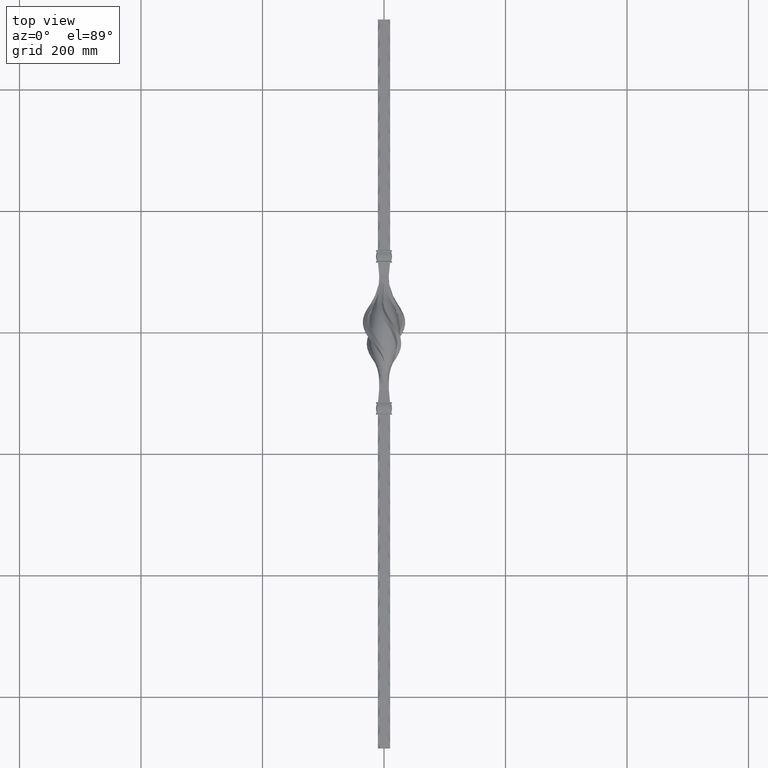
[diagram: clean part render]
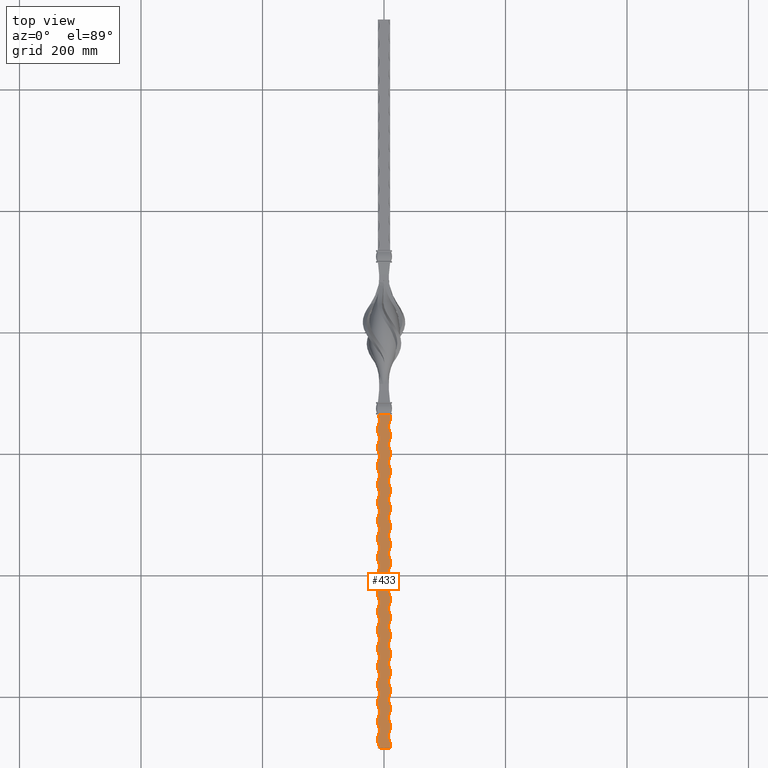
[diagram: same view with one face highlighted and labeled with its STEP entity id]
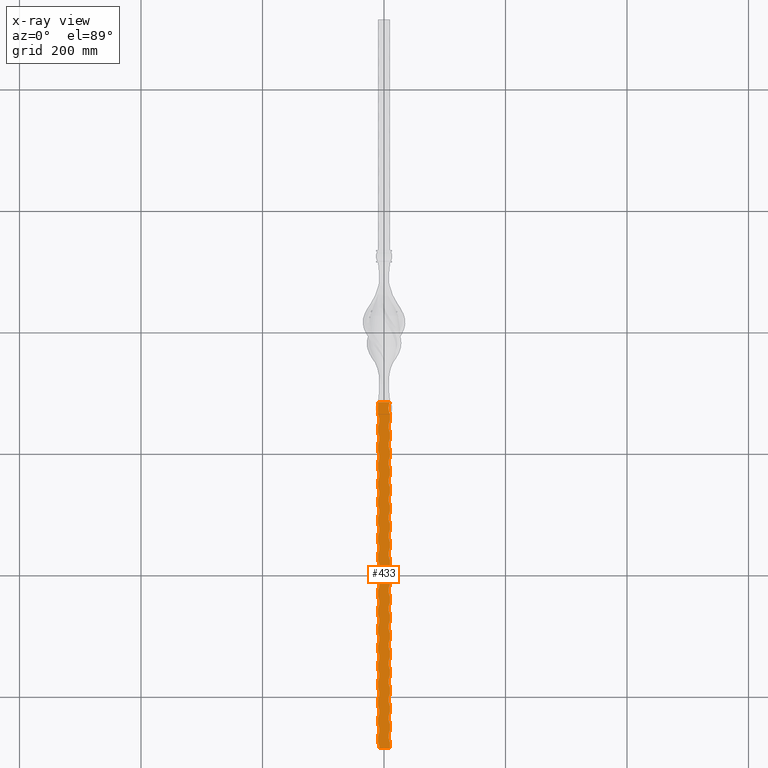
[diagram: x-ray of the same camera — body ghosted, the highlighted face saturated]
A machine part, top view. The second image highlights one B-rep face of the part: STEP entity #433.
The next image is the same camera in x-ray: the body ghosted, the highlighted face saturated — about 0% of this face is hidden behind the body in this view.
In plain terms, the highlighted planar face has unit normal (-0, 0, -1).
Its self-contained STEP definition (entity closure, byte-faithful):
#9 = AXIS2_PLACEMENT_3D ( 'NONE', #24786, #6959, #28830 ) ;
#42 = CARTESIAN_POINT ( 'NONE',  ( -10.00000000000050804, -275.0000000000000000, 10.00000000000000533 ) ) ;
#85 = VERTEX_POINT ( 'NONE', #8922 ) ;
#116 = ORIENTED_EDGE ( 'NONE', *, *, #24382, .F. ) ;
#206 = VERTEX_POINT ( 'NONE', #24810 ) ;
#233 = VECTOR ( 'NONE', #1951, 1000.000000000000000 ) ;
#242 = ORIENTED_EDGE ( 'NONE', *, *, #6514, .T. ) ;
#299 = EDGE_CURVE ( 'NONE', #24684, #20788, #23726, .T. ) ;
#333 = DIRECTION ( 'NONE',  ( -0.000000000000000000, -0.000000000000000000, -1.000000000000000000 ) ) ;
#339 = EDGE_CURVE ( 'NONE', #10174, #18144, #16110, .T. ) ;
#426 = EDGE_CURVE ( 'NONE', #19575, #14407, #10162, .T. ) ;
#433 = ADVANCED_FACE ( 'NONE', ( #20985 ), #4538, .F. ) ;
#455 = CARTESIAN_POINT ( 'NONE',  ( -10.00000000000029132, -195.0000000000000568, 10.00000000000000533 ) ) ;
#462 = VERTEX_POINT ( 'NONE', #9193 ) ;
#469 = ORIENTED_EDGE ( 'NONE', *, *, #1239, .F. ) ;
#470 = EDGE_CURVE ( 'NONE', #749, #206, #23039, .T. ) ;
#518 = LINE ( 'NONE', #10863, #27985 ) ;
#692 = DIRECTION ( 'NONE',  ( -0.000000000000000000, -0.000000000000000000, -1.000000000000000000 ) ) ;
#702 = DIRECTION ( 'NONE',  ( -0.000000000000000000, -0.000000000000000000, -1.000000000000000000 ) ) ;
#740 = VERTEX_POINT ( 'NONE', #455 ) ;
#741 = DIRECTION ( 'NONE',  ( -1.000000000000000000, 0.000000000000000000, 0.000000000000000000 ) ) ;
#749 = VERTEX_POINT ( 'NONE', #9584 ) ;
#754 = CARTESIAN_POINT ( 'NONE',  ( 10.00000000000000178, -415.0000000000036380, 10.00000000000000533 ) ) ;
#766 = DIRECTION ( 'NONE',  ( -0.000000000000000000, -0.000000000000000000, -1.000000000000000000 ) ) ;
#889 = AXIS2_PLACEMENT_3D ( 'NONE', #3494, #28159, #1166 ) ;
#943 = VERTEX_POINT ( 'NONE', #13374 ) ;
#965 = CARTESIAN_POINT ( 'NONE',  ( -10.00000000000127365, -465.0000000000000000, 10.00000000000000533 ) ) ;
#988 = CARTESIAN_POINT ( 'NONE',  ( -10.00000000000000000, -130.0000000000000000, 10.00000000000000533 ) ) ;
#1010 = DIRECTION ( 'NONE',  ( -0.000000000000000000, 1.000000000000000000, -0.000000000000000000 ) ) ;
#1050 = VERTEX_POINT ( 'NONE', #2952 ) ;
#1113 = EDGE_CURVE ( 'NONE', #24017, #12822, #3173, .T. ) ;
#1129 = DIRECTION ( 'NONE',  ( -0.000000000000000000, -0.000000000000000000, -1.000000000000000000 ) ) ;
#1141 = ORIENTED_EDGE ( 'NONE', *, *, #13402, .T. ) ;
#1155 = VECTOR ( 'NONE', #18752, 1000.000000000000000 ) ;
#1166 = DIRECTION ( 'NONE',  ( -1.000000000000000000, 0.000000000000000000, 0.000000000000000000 ) ) ;
#1191 = EDGE_CURVE ( 'NONE', #23761, #22421, #25432, .T. ) ;
#1200 = EDGE_CURVE ( 'NONE', #462, #5820, #7705, .T. ) ;
#1201 = CIRCLE ( 'NONE', #15718, 21.25000000000003197 ) ;
#1239 = EDGE_CURVE ( 'NONE', #10174, #20815, #13629, .T. ) ;
#1328 = CARTESIAN_POINT ( 'NONE',  ( 28.74999999999810996, -425.0000000000000568, 10.00000000000000533 ) ) ;
#1379 = CIRCLE ( 'NONE', #4790, 21.25000000000003197 ) ;
#1523 = ORIENTED_EDGE ( 'NONE', *, *, #20984, .T. ) ;
#1524 = EDGE_CURVE ( 'NONE', #26336, #2981, #4931, .T. ) ;
#1595 = DIRECTION ( 'NONE',  ( -0.000000000000000000, 1.000000000000000000, -0.000000000000000000 ) ) ;
#1696 = CARTESIAN_POINT ( 'NONE',  ( -28.75000000000020961, -175.0000000000000568, 10.00000000000000533 ) ) ;
#1711 = CARTESIAN_POINT ( 'NONE',  ( -10.00000000000094502, -395.0000000000000000, 10.00000000000000533 ) ) ;
#1943 = CIRCLE ( 'NONE', #27223, 21.25000000000003197 ) ;
#1951 = DIRECTION ( 'NONE',  ( -0.000000000000000000, 1.000000000000000000, -0.000000000000000000 ) ) ;
#2099 = CARTESIAN_POINT ( 'NONE',  ( 10.00000000000000000, -175.0000000000036664, 10.00000000000000533 ) ) ;
#2113 = ORIENTED_EDGE ( 'NONE', *, *, #4495, .T. ) ;
#2120 = EDGE_CURVE ( 'NONE', #206, #9529, #9411, .T. ) ;
#2123 = AXIS2_PLACEMENT_3D ( 'NONE', #13201, #6252, #28704 ) ;
#2145 = ORIENTED_EDGE ( 'NONE', *, *, #1113, .F. ) ;
#2298 = CARTESIAN_POINT ( 'NONE',  ( 9.999999999998074429, -315.0000000000000568, 10.00000000000000533 ) ) ;
#2328 = EDGE_CURVE ( 'NONE', #19916, #6972, #9059, .T. ) ;
#2397 = VECTOR ( 'NONE', #1595, 1000.000000000000000 ) ;
#2427 = DIRECTION ( 'NONE',  ( -0.000000000000000000, 1.000000000000000000, -0.000000000000000000 ) ) ;
#2472 = CARTESIAN_POINT ( 'NONE',  ( 10.00000000000000178, -625.0000000000036380, 10.00000000000000533 ) ) ;
#2482 = AXIS2_PLACEMENT_3D ( 'NONE', #7305, #702, #16108 ) ;
#2536 = CARTESIAN_POINT ( 'NONE',  ( -10.00000000000000000, -114.9999999999999858, 10.00000000000000533 ) ) ;
#2557 = EDGE_CURVE ( 'NONE', #23431, #27333, #13601, .T. ) ;
#2561 = ORIENTED_EDGE ( 'NONE', *, *, #27881, .T. ) ;
#2566 = CIRCLE ( 'NONE', #2482, 21.25000000000003197 ) ;
#2568 = DIRECTION ( 'NONE',  ( -1.000000000000000000, 0.000000000000000000, 0.000000000000000000 ) ) ;
#2609 = CARTESIAN_POINT ( 'NONE',  ( 9.999999999998074429, -255.0000000000000568, 10.00000000000000533 ) ) ;
#2691 = LINE ( 'NONE', #10883, #17315 ) ;
#2763 = DIRECTION ( 'NONE',  ( -0.000000000000000000, -0.000000000000000000, -1.000000000000000000 ) ) ;
#2777 = CIRCLE ( 'NONE', #6236, 21.25000000000002487 ) ;
#2816 = AXIS2_PLACEMENT_3D ( 'NONE', #7662, #766, #16547 ) ;
#2822 = ORIENTED_EDGE ( 'NONE', *, *, #15702, .T. ) ;
#2837 = LINE ( 'NONE', #16025, #27169 ) ;
#2847 = CARTESIAN_POINT ( 'NONE',  ( -10.00000000000018296, -165.0000000000000284, 10.00000000000000533 ) ) ;
#2931 = LINE ( 'NONE', #11628, #5359 ) ;
#2933 = AXIS2_PLACEMENT_3D ( 'NONE', #24370, #11377, #11271 ) ;
#2952 = CARTESIAN_POINT ( 'NONE',  ( 9.999999999998076206, -555.0000000000000000, 10.00000000000000533 ) ) ;
#2954 = CIRCLE ( 'NONE', #24654, 21.25000000000003197 ) ;
#2981 = VERTEX_POINT ( 'NONE', #3190 ) ;
#3070 = CARTESIAN_POINT ( 'NONE',  ( 28.74999999999810996, -275.0000000000000000, 10.00000000000000533 ) ) ;
#3082 = ORIENTED_EDGE ( 'NONE', *, *, #15968, .T. ) ;
#3084 = CARTESIAN_POINT ( 'NONE',  ( -10.00000000000007283, -155.0000000000000284, 10.00000000000000533 ) ) ;
#3086 = CIRCLE ( 'NONE', #26036, 21.25000000000002842 ) ;
#3088 = ORIENTED_EDGE ( 'NONE', *, *, #9757, .T. ) ;
#3106 = CARTESIAN_POINT ( 'NONE',  ( -10.00000000000040146, -225.0000000000000284, 10.00000000000000533 ) ) ;
#3109 = AXIS2_PLACEMENT_3D ( 'NONE', #3070, #22975, #27447 ) ;
#3115 = VECTOR ( 'NONE', #8339, 1000.000000000000000 ) ;
#3121 = ORIENTED_EDGE ( 'NONE', *, *, #17822, .T. ) ;
#3159 = CARTESIAN_POINT ( 'NONE',  ( -10.00000000000000000, -130.0000000000000000, 10.00000000000000533 ) ) ;
#3173 = LINE ( 'NONE', #12499, #9085 ) ;
#3190 = CARTESIAN_POINT ( 'NONE',  ( -10.00000000000160050, -575.0000000000001137, 10.00000000000000533 ) ) ;
#3301 = DIRECTION ( 'NONE',  ( -0.000000000000000000, 1.000000000000000000, -0.000000000000000000 ) ) ;
#3331 = DIRECTION ( 'NONE',  ( -0.000000000000000000, -0.000000000000000000, -1.000000000000000000 ) ) ;
#3464 = VECTOR ( 'NONE', #10393, 1000.000000000000000 ) ;
#3494 = CARTESIAN_POINT ( 'NONE',  ( -28.75000000000064304, -295.0000000000000568, 10.00000000000000533 ) ) ;
#3499 = CIRCLE ( 'NONE', #8837, 21.25000000000003197 ) ;
#3524 = DIRECTION ( 'NONE',  ( -1.000000000000000000, 0.000000000000000000, 0.000000000000000000 ) ) ;
#3572 = ORIENTED_EDGE ( 'NONE', *, *, #11438, .T. ) ;
#3596 = CARTESIAN_POINT ( 'NONE',  ( -10.00000000000192735, -645.0000000000000000, 10.00000000000000533 ) ) ;
#3653 = DIRECTION ( 'NONE',  ( -0.000000000000000000, -0.000000000000000000, -1.000000000000000000 ) ) ;
#3831 = VERTEX_POINT ( 'NONE', #2298 ) ;
#3898 = VERTEX_POINT ( 'NONE', #7063 ) ;
#3928 = ORIENTED_EDGE ( 'NONE', *, *, #2328, .F. ) ;
#3992 = CARTESIAN_POINT ( 'NONE',  ( -10.00000000000029132, -215.0000000000000853, 10.00000000000000533 ) ) ;
#4022 = EDGE_CURVE ( 'NONE', #6005, #14407, #9333, .T. ) ;
#4044 = CIRCLE ( 'NONE', #10217, 21.25000000000002842 ) ;
#4067 = ORIENTED_EDGE ( 'NONE', *, *, #8910, .T. ) ;
#4184 = ORIENTED_EDGE ( 'NONE', *, *, #20201, .T. ) ;
#4411 = EDGE_CURVE ( 'NONE', #17824, #12504, #12126, .T. ) ;
#4495 = EDGE_CURVE ( 'NONE', #17465, #23522, #2691, .T. ) ;
#4507 = CARTESIAN_POINT ( 'NONE',  ( -28.75000000000075318, -325.0000000000000568, 10.00000000000000533 ) ) ;
#4538 = PLANE ( 'NONE',  #2933 ) ;
#4611 = CIRCLE ( 'NONE', #17837, 21.25000000000002487 ) ;
#4642 = CARTESIAN_POINT ( 'NONE',  ( 10.00000000000000000, -130.0000000000000000, 10.00000000000000533 ) ) ;
#4697 = VECTOR ( 'NONE', #8727, 1000.000000000000000 ) ;
#4727 = CIRCLE ( 'NONE', #8376, 21.25000000000003197 ) ;
#4761 = CARTESIAN_POINT ( 'NONE',  ( 10.00000000000000000, -130.0000000000000000, 10.00000000000000533 ) ) ;
#4780 = DIRECTION ( 'NONE',  ( 1.000000000000000000, 0.000000000000000000, 0.000000000000000000 ) ) ;
#4790 = AXIS2_PLACEMENT_3D ( 'NONE', #12907, #3653, #25910 ) ;
#4797 = VERTEX_POINT ( 'NONE', #17363 ) ;
#4798 = CIRCLE ( 'NONE', #3109, 21.25000000000003197 ) ;
#4909 = CARTESIAN_POINT ( 'NONE',  ( -28.75000000000119016, -445.0000000000000568, 10.00000000000000533 ) ) ;
#4931 = LINE ( 'NONE', #13061, #20591 ) ;
#4949 = EDGE_CURVE ( 'NONE', #9399, #11756, #26638, .T. ) ;
#5006 = LINE ( 'NONE', #14058, #9165 ) ;
#5052 = CARTESIAN_POINT ( 'NONE',  ( 28.74999999999810996, -155.0000000000000284, 10.00000000000000533 ) ) ;
#5066 = DIRECTION ( 'NONE',  ( -0.000000000000000000, -0.000000000000000000, -1.000000000000000000 ) ) ;
#5133 = EDGE_CURVE ( 'NONE', #10404, #20815, #10343, .T. ) ;
#5148 = DIRECTION ( 'NONE',  ( -0.000000000000000000, 1.000000000000000000, -0.000000000000000000 ) ) ;
#5155 = VERTEX_POINT ( 'NONE', #13783 ) ;
#5217 = CARTESIAN_POINT ( 'NONE',  ( -10.00000000000000000, -130.0000000000000000, 10.00000000000000533 ) ) ;
#5359 = VECTOR ( 'NONE', #27134, 1000.000000000000000 ) ;
#5412 = DIRECTION ( 'NONE',  ( -1.000000000000000000, 0.000000000000000000, 0.000000000000000000 ) ) ;
#5419 = EDGE_CURVE ( 'NONE', #23965, #21728, #26282, .T. ) ;
#5482 = CARTESIAN_POINT ( 'NONE',  ( -10.00000000000000000, -130.0000000000000000, 10.00000000000000533 ) ) ;
#5498 = VERTEX_POINT ( 'NONE', #24476 ) ;
#5508 = DIRECTION ( 'NONE',  ( -0.000000000000000000, -0.000000000000000000, -1.000000000000000000 ) ) ;
#5557 = ORIENTED_EDGE ( 'NONE', *, *, #16183, .T. ) ;
#5646 = CARTESIAN_POINT ( 'NONE',  ( -28.75000000000130385, -475.0000000000000568, 10.00000000000000533 ) ) ;
#5668 = EDGE_CURVE ( 'NONE', #11194, #9046, #21786, .T. ) ;
#5785 = CARTESIAN_POINT ( 'NONE',  ( 10.00000000000000178, -445.0000000000036948, 10.00000000000000533 ) ) ;
#5820 = VERTEX_POINT ( 'NONE', #1711 ) ;
#5821 = LINE ( 'NONE', #15300, #233 ) ;
#5985 = EDGE_CURVE ( 'NONE', #19575, #19475, #12157, .T. ) ;
#6005 = VERTEX_POINT ( 'NONE', #7867 ) ;
#6033 = EDGE_CURVE ( 'NONE', #18595, #19475, #14591, .T. ) ;
#6093 = VECTOR ( 'NONE', #4780, 1000.000000000000000 ) ;
#6139 = EDGE_CURVE ( 'NONE', #20870, #28663, #12496, .T. ) ;
#6181 = DIRECTION ( 'NONE',  ( -1.000000000000000000, 0.000000000000000000, 0.000000000000000000 ) ) ;
#6208 = ORIENTED_EDGE ( 'NONE', *, *, #13048, .T. ) ;
#6236 = AXIS2_PLACEMENT_3D ( 'NONE', #4507, #333, #13591 ) ;
#6239 = ORIENTED_EDGE ( 'NONE', *, *, #11076, .T. ) ;
#6252 = DIRECTION ( 'NONE',  ( -0.000000000000000000, -0.000000000000000000, -1.000000000000000000 ) ) ;
#6288 = DIRECTION ( 'NONE',  ( -1.000000000000000000, 0.000000000000000000, 0.000000000000000000 ) ) ;
#6368 = ORIENTED_EDGE ( 'NONE', *, *, #23374, .T. ) ;
#6374 = VERTEX_POINT ( 'NONE', #2472 ) ;
#6450 = ORIENTED_EDGE ( 'NONE', *, *, #299, .T. ) ;
#6514 = EDGE_CURVE ( 'NONE', #4797, #17820, #4798, .T. ) ;
#6591 = AXIS2_PLACEMENT_3D ( 'NONE', #22039, #26388, #28729 ) ;
#6615 = CARTESIAN_POINT ( 'NONE',  ( -28.75000000000053646, -265.0000000000000000, 10.00000000000000533 ) ) ;
#6674 = AXIS2_PLACEMENT_3D ( 'NONE', #4909, #16112, #25025 ) ;
#6707 = CARTESIAN_POINT ( 'NONE',  ( -10.00000000000116351, -455.0000000000000568, 10.00000000000000533 ) ) ;
#6729 = EDGE_CURVE ( 'NONE', #22047, #18749, #14886, .T. ) ;
#6791 = ORIENTED_EDGE ( 'NONE', *, *, #8567, .F. ) ;
#6830 = EDGE_CURVE ( 'NONE', #24684, #24541, #23187, .T. ) ;
#6946 = DIRECTION ( 'NONE',  ( -0.000000000000000000, 1.000000000000000000, -0.000000000000000000 ) ) ;
#6959 = DIRECTION ( 'NONE',  ( -0.000000000000000000, -0.000000000000000000, -1.000000000000000000 ) ) ;
#6972 = VERTEX_POINT ( 'NONE', #3992 ) ;
#6991 = AXIS2_PLACEMENT_3D ( 'NONE', #7896, #12399, #23722 ) ;
#7013 = DIRECTION ( 'NONE',  ( -0.000000000000000000, 1.000000000000000000, -0.000000000000000000 ) ) ;
#7063 = CARTESIAN_POINT ( 'NONE',  ( -10.00000000000072653, -315.0000000000000568, 10.00000000000000533 ) ) ;
#7118 = DIRECTION ( 'NONE',  ( -0.000000000000000000, 1.000000000000000000, -0.000000000000000000 ) ) ;
#7124 = EDGE_CURVE ( 'NONE', #3898, #20788, #5821, .T. ) ;
#7198 = ORIENTED_EDGE ( 'NONE', *, *, #25597, .T. ) ;
#7206 = CARTESIAN_POINT ( 'NONE',  ( 28.74999999999810996, -185.0000000000000568, 10.00000000000000533 ) ) ;
#7211 = DIRECTION ( 'NONE',  ( -1.000000000000000000, 0.000000000000000000, 0.000000000000000000 ) ) ;
#7292 = DIRECTION ( 'NONE',  ( -0.000000000000000000, -0.000000000000000000, -1.000000000000000000 ) ) ;
#7305 = CARTESIAN_POINT ( 'NONE',  ( 28.74999999999810996, -485.0000000000000568, 10.00000000000000533 ) ) ;
#7306 = CARTESIAN_POINT ( 'NONE',  ( -10.00000000000072653, -335.0000000000000568, 10.00000000000000533 ) ) ;
#7332 = CARTESIAN_POINT ( 'NONE',  ( -10.00000000000000000, -130.0000000000000000, 10.00000000000000533 ) ) ;
#7402 = EDGE_CURVE ( 'NONE', #26336, #11307, #4044, .T. ) ;
#7414 = ORIENTED_EDGE ( 'NONE', *, *, #5133, .T. ) ;
#7487 = CARTESIAN_POINT ( 'NONE',  ( -10.00000000000105516, -425.0000000000000568, 10.00000000000000533 ) ) ;
#7526 = ORIENTED_EDGE ( 'NONE', *, *, #6729, .T. ) ;
#7642 = DIRECTION ( 'NONE',  ( -1.000000000000000000, 0.000000000000000000, 0.000000000000000000 ) ) ;
#7662 = CARTESIAN_POINT ( 'NONE',  ( -28.75000000000162714, -565.0000000000001137, 10.00000000000000533 ) ) ;
#7674 = VECTOR ( 'NONE', #23816, 1000.000000000000000 ) ;
#7705 = LINE ( 'NONE', #7891, #12944 ) ;
#7741 = AXIS2_PLACEMENT_3D ( 'NONE', #1696, #28047, #10481 ) ;
#7867 = CARTESIAN_POINT ( 'NONE',  ( -10.00000000000181899, -615.0000000000000000, 10.00000000000000533 ) ) ;
#7879 = EDGE_CURVE ( 'NONE', #17820, #25334, #518, .T. ) ;
#7891 = CARTESIAN_POINT ( 'NONE',  ( -10.00000000000000000, -130.0000000000000000, 10.00000000000000533 ) ) ;
#7892 = VERTEX_POINT ( 'NONE', #12136 ) ;
#7896 = CARTESIAN_POINT ( 'NONE',  ( -28.75000000000151701, -535.0000000000000000, 10.00000000000000533 ) ) ;
#7974 = EDGE_CURVE ( 'NONE', #25334, #15670, #2954, .T. ) ;
#7999 = ORIENTED_EDGE ( 'NONE', *, *, #17687, .T. ) ;
#8055 = EDGE_CURVE ( 'NONE', #23717, #21728, #26899, .T. ) ;
#8118 = AXIS2_PLACEMENT_3D ( 'NONE', #20650, #7292, #14042 ) ;
#8220 = LINE ( 'NONE', #26732, #13100 ) ;
#8250 = CARTESIAN_POINT ( 'NONE',  ( 10.00000000000000000, -130.0000000000000000, 10.00000000000000533 ) ) ;
#8339 = DIRECTION ( 'NONE',  ( -0.000000000000000000, 1.000000000000000000, -0.000000000000000000 ) ) ;
#8376 = AXIS2_PLACEMENT_3D ( 'NONE', #17177, #28216, #25901 ) ;
#8409 = DIRECTION ( 'NONE',  ( -0.000000000000000000, -0.000000000000000000, -1.000000000000000000 ) ) ;
#8430 = CARTESIAN_POINT ( 'NONE',  ( -10.00000000000000000, -130.0000000000000000, 10.00000000000000533 ) ) ;
#8476 = VECTOR ( 'NONE', #2427, 1000.000000000000000 ) ;
#8567 = EDGE_CURVE ( 'NONE', #11806, #20458, #12347, .T. ) ;
#8661 = DIRECTION ( 'NONE',  ( -0.000000000000000000, -0.000000000000000000, -1.000000000000000000 ) ) ;
#8712 = CARTESIAN_POINT ( 'NONE',  ( -28.75000000000196110, -685.0000000000000000, 10.00000000000000533 ) ) ;
#8714 = ORIENTED_EDGE ( 'NONE', *, *, #18791, .F. ) ;
#8725 = VECTOR ( 'NONE', #16578, 1000.000000000000000 ) ;
#8727 = DIRECTION ( 'NONE',  ( -0.000000000000000000, 1.000000000000000000, -0.000000000000000000 ) ) ;
#8825 = EDGE_CURVE ( 'NONE', #13616, #12975, #24844, .T. ) ;
#8837 = AXIS2_PLACEMENT_3D ( 'NONE', #13842, #5066, #22830 ) ;
#8848 = CARTESIAN_POINT ( 'NONE',  ( -10.00000000000061817, -305.0000000000000568, 10.00000000000000533 ) ) ;
#8910 = EDGE_CURVE ( 'NONE', #13616, #26632, #17181, .T. ) ;
#8922 = CARTESIAN_POINT ( 'NONE',  ( 10.00000000000000178, -655.0000000000036380, 10.00000000000000533 ) ) ;
#9046 = VERTEX_POINT ( 'NONE', #13199 ) ;
#9059 = LINE ( 'NONE', #13060, #24739 ) ;
#9085 = VECTOR ( 'NONE', #16588, 1000.000000000000000 ) ;
#9165 = VECTOR ( 'NONE', #7013, 1000.000000000000000 ) ;
#9174 = VECTOR ( 'NONE', #22167, 1000.000000000000000 ) ;
#9193 = CARTESIAN_POINT ( 'NONE',  ( -10.00000000000105516, -405.0000000000000000, 10.00000000000000533 ) ) ;
#9209 = DIRECTION ( 'NONE',  ( -1.000000000000000000, 2.775557561562891351E-15, 0.000000000000000000 ) ) ;
#9232 = EDGE_CURVE ( 'NONE', #23496, #28663, #10895, .T. ) ;
#9272 = DIRECTION ( 'NONE',  ( -0.000000000000000000, -0.000000000000000000, -1.000000000000000000 ) ) ;
#9333 = CIRCLE ( 'NONE', #12865, 21.25000000000003197 ) ;
#9389 = AXIS2_PLACEMENT_3D ( 'NONE', #13899, #18072, #20404 ) ;
#9398 = CARTESIAN_POINT ( 'NONE',  ( 9.999999999998076206, -525.0000000000000000, 10.00000000000000533 ) ) ;
#9399 = VERTEX_POINT ( 'NONE', #12601 ) ;
#9411 = CIRCLE ( 'NONE', #22678, 21.25000000000003197 ) ;
#9441 = VECTOR ( 'NONE', #22090, 1000.000000000000000 ) ;
#9529 = VERTEX_POINT ( 'NONE', #22268 ) ;
#9551 = CARTESIAN_POINT ( 'NONE',  ( 10.00000000000000000, -130.0000000000000000, 10.00000000000000533 ) ) ;
#9584 = CARTESIAN_POINT ( 'NONE',  ( 10.00000000000000178, -385.0000000000036380, 10.00000000000000533 ) ) ;
#9674 = CARTESIAN_POINT ( 'NONE',  ( 9.999999999998076206, -465.0000000000000568, 10.00000000000000533 ) ) ;
#9743 = CIRCLE ( 'NONE', #9389, 21.25000000000003197 ) ;
#9757 = EDGE_CURVE ( 'NONE', #16435, #12975, #4611, .T. ) ;
#9868 = VERTEX_POINT ( 'NONE', #7487 ) ;
#9914 = ORIENTED_EDGE ( 'NONE', *, *, #2557, .T. ) ;
#9948 = ORIENTED_EDGE ( 'NONE', *, *, #6139, .T. ) ;
#10065 = DIRECTION ( 'NONE',  ( -1.000000000000000000, 0.000000000000000000, 0.000000000000000000 ) ) ;
#10162 = LINE ( 'NONE', #26291, #27892 ) ;
#10174 = VERTEX_POINT ( 'NONE', #965 ) ;
#10217 = AXIS2_PLACEMENT_3D ( 'NONE', #15329, #15054, #22008 ) ;
#10343 = CIRCLE ( 'NONE', #6674, 21.25000000000003197 ) ;
#10393 = DIRECTION ( 'NONE',  ( -0.000000000000000000, 1.000000000000000000, -0.000000000000000000 ) ) ;
#10404 = VERTEX_POINT ( 'NONE', #11256 ) ;
#10481 = DIRECTION ( 'NONE',  ( -1.000000000000000000, 0.000000000000000000, 0.000000000000000000 ) ) ;
#10482 = DIRECTION ( 'NONE',  ( -1.000000000000000000, 0.000000000000000000, 0.000000000000000000 ) ) ;
#10681 = EDGE_CURVE ( 'NONE', #19154, #24541, #18872, .T. ) ;
#10736 = EDGE_CURVE ( 'NONE', #6005, #11307, #14693, .T. ) ;
#10743 = CARTESIAN_POINT ( 'NONE',  ( 10.00000000000000000, -295.0000000000036380, 10.00000000000000533 ) ) ;
#10764 = DIRECTION ( 'NONE',  ( -0.000000000000000000, -0.000000000000000000, -1.000000000000000000 ) ) ;
#10779 = EDGE_CURVE ( 'NONE', #15670, #19713, #2837, .T. ) ;
#10814 = ORIENTED_EDGE ( 'NONE', *, *, #19436, .T. ) ;
#10863 = CARTESIAN_POINT ( 'NONE',  ( 10.00000000000000000, -130.0000000000000000, 10.00000000000000533 ) ) ;
#10883 = CARTESIAN_POINT ( 'NONE',  ( 10.00000000000000000, -130.0000000000000000, 10.00000000000000533 ) ) ;
#10895 = LINE ( 'NONE', #7332, #1155 ) ;
#10899 = EDGE_CURVE ( 'NONE', #19154, #943, #13271, .T. ) ;
#10936 = DIRECTION ( 'NONE',  ( -0.000000000000000000, 1.000000000000000000, -0.000000000000000000 ) ) ;
#10942 = ORIENTED_EDGE ( 'NONE', *, *, #14298, .T. ) ;
#11076 = EDGE_CURVE ( 'NONE', #23496, #12822, #26100, .T. ) ;
#11194 = VERTEX_POINT ( 'NONE', #13059 ) ;
#11255 = CARTESIAN_POINT ( 'NONE',  ( -10.00000000000149036, -525.0000000000000000, 10.00000000000000533 ) ) ;
#11256 = CARTESIAN_POINT ( 'NONE',  ( -10.00000000000116351, -435.0000000000000568, 10.00000000000000533 ) ) ;
#11271 = DIRECTION ( 'NONE',  ( -1.000000000000000000, 0.000000000000000000, 0.000000000000000000 ) ) ;
#11307 = VERTEX_POINT ( 'NONE', #20048 ) ;
#11326 = LINE ( 'NONE', #28754, #4697 ) ;
#11377 = DIRECTION ( 'NONE',  ( -0.000000000000000000, 0.000000000000000000, -1.000000000000000000 ) ) ;
#11411 = CARTESIAN_POINT ( 'NONE',  ( 9.999999999998076206, -495.0000000000000568, 10.00000000000000533 ) ) ;
#11414 = CARTESIAN_POINT ( 'NONE',  ( 10.00000000000000000, -235.0000000000036380, 10.00000000000000533 ) ) ;
#11438 = EDGE_CURVE ( 'NONE', #17917, #7892, #3499, .T. ) ;
#11491 = CARTESIAN_POINT ( 'NONE',  ( 9.999999999998074429, -685.0000000000000000, 10.00000000000000533 ) ) ;
#11584 = CARTESIAN_POINT ( 'NONE',  ( 9.999999999998074429, -685.0000000000000000, 10.00000000000000533 ) ) ;
#11617 = CARTESIAN_POINT ( 'NONE',  ( -10.00000000000138201, -515.0000000000000000, 10.00000000000000533 ) ) ;
#11628 = CARTESIAN_POINT ( 'NONE',  ( 10.00000000000000000, -130.0000000000000000, 10.00000000000000533 ) ) ;
#11686 = AXIS2_PLACEMENT_3D ( 'NONE', #6615, #8661, #24243 ) ;
#11756 = VERTEX_POINT ( 'NONE', #754 ) ;
#11806 = VERTEX_POINT ( 'NONE', #11584 ) ;
#11946 = DIRECTION ( 'NONE',  ( -0.000000000000000000, -0.000000000000000000, -1.000000000000000000 ) ) ;
#11982 = CARTESIAN_POINT ( 'NONE',  ( 10.00000000000000000, -130.0000000000000000, 10.00000000000000533 ) ) ;
#11998 = EDGE_CURVE ( 'NONE', #5155, #749, #1379, .T. ) ;
#12031 = DIRECTION ( 'NONE',  ( -0.000000000000000000, 1.000000000000000000, -0.000000000000000000 ) ) ;
#12078 = EDGE_CURVE ( 'NONE', #10404, #9868, #19467, .T. ) ;
#12126 = LINE ( 'NONE', #26212, #20112 ) ;
#12136 = CARTESIAN_POINT ( 'NONE',  ( 10.00000000000000000, -325.0000000000036948, 10.00000000000000533 ) ) ;
#12141 = DIRECTION ( 'NONE',  ( -0.000000000000000000, -0.000000000000000000, -1.000000000000000000 ) ) ;
#12157 = CIRCLE ( 'NONE', #8118, 21.25000000000003197 ) ;
#12247 = EDGE_CURVE ( 'NONE', #3898, #13675, #2777, .T. ) ;
#12249 = DIRECTION ( 'NONE',  ( -0.000000000000000000, -0.000000000000000000, -1.000000000000000000 ) ) ;
#12298 = ORIENTED_EDGE ( 'NONE', *, *, #339, .T. ) ;
#12340 = DIRECTION ( 'NONE',  ( -1.000000000000000000, 0.000000000000000000, 0.000000000000000000 ) ) ;
#12347 = LINE ( 'NONE', #11491, #13358 ) ;
#12399 = DIRECTION ( 'NONE',  ( -0.000000000000000000, -0.000000000000000000, -1.000000000000000000 ) ) ;
#12441 = DIRECTION ( 'NONE',  ( -0.000000000000000000, -0.000000000000000000, -1.000000000000000000 ) ) ;
#12491 = ORIENTED_EDGE ( 'NONE', *, *, #22477, .F. ) ;
#12496 = CIRCLE ( 'NONE', #6591, 21.25000000000002842 ) ;
#12499 = CARTESIAN_POINT ( 'NONE',  ( -10.00000000000000000, -130.0000000000000000, 10.00000000000000533 ) ) ;
#12504 = VERTEX_POINT ( 'NONE', #21783 ) ;
#12601 = CARTESIAN_POINT ( 'NONE',  ( 9.999999999998076206, -435.0000000000000568, 10.00000000000000533 ) ) ;
#12734 = VECTOR ( 'NONE', #14355, 1000.000000000000000 ) ;
#12822 = VERTEX_POINT ( 'NONE', #21756 ) ;
#12865 = AXIS2_PLACEMENT_3D ( 'NONE', #16113, #2763, #7211 ) ;
#12886 = VERTEX_POINT ( 'NONE', #27074 ) ;
#12899 = DIRECTION ( 'NONE',  ( -0.000000000000000000, -0.000000000000000000, -1.000000000000000000 ) ) ;
#12907 = CARTESIAN_POINT ( 'NONE',  ( 28.74999999999810996, -395.0000000000000000, 10.00000000000000533 ) ) ;
#12938 = CARTESIAN_POINT ( 'NONE',  ( -28.75000000000086686, -355.0000000000000568, 10.00000000000000533 ) ) ;
#12944 = VECTOR ( 'NONE', #1010, 1000.000000000000000 ) ;
#12975 = VERTEX_POINT ( 'NONE', #3084 ) ;
#13048 = EDGE_CURVE ( 'NONE', #23522, #13208, #18057, .T. ) ;
#13059 = CARTESIAN_POINT ( 'NONE',  ( -10.00000000000000000, -114.9999999999999858, 10.00000000000000533 ) ) ;
#13060 = CARTESIAN_POINT ( 'NONE',  ( -10.00000000000000000, -130.0000000000000000, 10.00000000000000533 ) ) ;
#13061 = CARTESIAN_POINT ( 'NONE',  ( -10.00000000000000000, -130.0000000000000000, 10.00000000000000533 ) ) ;
#13100 = VECTOR ( 'NONE', #10936, 1000.000000000000000 ) ;
#13119 = DIRECTION ( 'NONE',  ( -0.000000000000000000, 1.000000000000000000, -0.000000000000000000 ) ) ;
#13199 = CARTESIAN_POINT ( 'NONE',  ( 10.00000000000000000, -114.9999999999999858, 10.00000000000000533 ) ) ;
#13201 = CARTESIAN_POINT ( 'NONE',  ( -28.75000000000042633, -235.0000000000000284, 10.00000000000000533 ) ) ;
#13208 = VERTEX_POINT ( 'NONE', #5785 ) ;
#13271 = LINE ( 'NONE', #3159, #18516 ) ;
#13358 = VECTOR ( 'NONE', #9209, 1000.000000000000000 ) ;
#13374 = CARTESIAN_POINT ( 'NONE',  ( -10.00000000000040146, -245.0000000000000568, 10.00000000000000533 ) ) ;
#13402 = EDGE_CURVE ( 'NONE', #7892, #3831, #21527, .T. ) ;
#13499 = ORIENTED_EDGE ( 'NONE', *, *, #1191, .T. ) ;
#13591 = DIRECTION ( 'NONE',  ( -1.000000000000000000, 0.000000000000000000, 0.000000000000000000 ) ) ;
#13601 = LINE ( 'NONE', #11982, #17075 ) ;
#13616 = VERTEX_POINT ( 'NONE', #2847 ) ;
#13629 = LINE ( 'NONE', #8430, #7674 ) ;
#13675 = VERTEX_POINT ( 'NONE', #7306 ) ;
#13716 = DIRECTION ( 'NONE',  ( -0.000000000000000000, -0.000000000000000000, -1.000000000000000000 ) ) ;
#13777 = ORIENTED_EDGE ( 'NONE', *, *, #26800, .T. ) ;
#13783 = CARTESIAN_POINT ( 'NONE',  ( 9.999999999998076206, -405.0000000000000000, 10.00000000000000533 ) ) ;
#13842 = CARTESIAN_POINT ( 'NONE',  ( 28.74999999999810996, -335.0000000000000568, 10.00000000000000533 ) ) ;
#13861 = ORIENTED_EDGE ( 'NONE', *, *, #12078, .F. ) ;
#13867 = DIRECTION ( 'NONE',  ( -1.000000000000000000, 0.000000000000000000, 0.000000000000000000 ) ) ;
#13899 = CARTESIAN_POINT ( 'NONE',  ( -28.75000000000108002, -415.0000000000000568, 10.00000000000000533 ) ) ;
#13906 = CARTESIAN_POINT ( 'NONE',  ( 9.999999999998074429, -195.0000000000000568, 10.00000000000000533 ) ) ;
#14042 = DIRECTION ( 'NONE',  ( -1.000000000000000000, 0.000000000000000000, 0.000000000000000000 ) ) ;
#14058 = CARTESIAN_POINT ( 'NONE',  ( 10.00000000000000000, -130.0000000000000000, 10.00000000000000533 ) ) ;
#14093 = CARTESIAN_POINT ( 'NONE',  ( -28.75000000000031619, -205.0000000000000568, 10.00000000000000533 ) ) ;
#14153 = DIRECTION ( 'NONE',  ( -0.000000000000000000, -0.000000000000000000, -1.000000000000000000 ) ) ;
#14164 = ORIENTED_EDGE ( 'NONE', *, *, #26902, .T. ) ;
#14171 = EDGE_CURVE ( 'NONE', #22421, #21919, #23200, .T. ) ;
#14294 = DIRECTION ( 'NONE',  ( -1.000000000000000000, 0.000000000000000000, 0.000000000000000000 ) ) ;
#14298 = EDGE_CURVE ( 'NONE', #24017, #2981, #26981, .T. ) ;
#14355 = DIRECTION ( 'NONE',  ( -0.000000000000000000, 1.000000000000000000, -0.000000000000000000 ) ) ;
#14359 = CARTESIAN_POINT ( 'NONE',  ( -10.00000000000000000, -130.0000000000000000, 10.00000000000000533 ) ) ;
#14393 = DIRECTION ( 'NONE',  ( -0.000000000000000000, -0.000000000000000000, -1.000000000000000000 ) ) ;
#14407 = VERTEX_POINT ( 'NONE', #17107 ) ;
#14412 = ORIENTED_EDGE ( 'NONE', *, *, #19124, .T. ) ;
#14441 = CARTESIAN_POINT ( 'NONE',  ( 10.00000000000000178, -565.0000000000037517, 10.00000000000000533 ) ) ;
#14443 = CARTESIAN_POINT ( 'NONE',  ( -10.00000000000160050, -555.0000000000000000, 10.00000000000000533 ) ) ;
#14455 = CARTESIAN_POINT ( 'NONE',  ( 28.74999999999810996, -605.0000000000000000, 10.00000000000000533 ) ) ;
#14485 = CARTESIAN_POINT ( 'NONE',  ( 28.74999999999810996, -545.0000000000000000, 10.00000000000000533 ) ) ;
#14591 = LINE ( 'NONE', #988, #19448 ) ;
#14616 = DIRECTION ( 'NONE',  ( -1.000000000000000000, 0.000000000000000000, 0.000000000000000000 ) ) ;
#14672 = CARTESIAN_POINT ( 'NONE',  ( 28.74999999999810996, -455.0000000000000568, 10.00000000000000533 ) ) ;
#14693 = LINE ( 'NONE', #17936, #9441 ) ;
#14743 = CARTESIAN_POINT ( 'NONE',  ( -10.00000000000127365, -485.0000000000000568, 10.00000000000000533 ) ) ;
#14750 = AXIS2_PLACEMENT_3D ( 'NONE', #23281, #14393, #5412 ) ;
#14834 = DIRECTION ( 'NONE',  ( -0.000000000000000000, 1.000000000000000000, -0.000000000000000000 ) ) ;
#14839 = LINE ( 'NONE', #20949, #12734 ) ;
#14886 = LINE ( 'NONE', #23652, #18006 ) ;
#14900 = CARTESIAN_POINT ( 'NONE',  ( 10.00000000000000000, -130.0000000000000000, 10.00000000000000533 ) ) ;
#14963 = ORIENTED_EDGE ( 'NONE', *, *, #2120, .T. ) ;
#15054 = DIRECTION ( 'NONE',  ( -0.000000000000000000, -0.000000000000000000, -1.000000000000000000 ) ) ;
#15134 = CARTESIAN_POINT ( 'NONE',  ( 28.74999999999810996, -125.0000000000000000, 10.00000000000000533 ) ) ;
#15140 = LINE ( 'NONE', #5482, #26574 ) ;
#15151 = AXIS2_PLACEMENT_3D ( 'NONE', #5052, #21006, #20617 ) ;
#15172 = ORIENTED_EDGE ( 'NONE', *, *, #10736, .F. ) ;
#15259 = ORIENTED_EDGE ( 'NONE', *, *, #10899, .F. ) ;
#15291 = EDGE_CURVE ( 'NONE', #740, #26632, #15140, .T. ) ;
#15300 = CARTESIAN_POINT ( 'NONE',  ( -10.00000000000000000, -130.0000000000000000, 10.00000000000000533 ) ) ;
#15329 = CARTESIAN_POINT ( 'NONE',  ( -28.75000000000173728, -595.0000000000000000, 10.00000000000000533 ) ) ;
#15338 = ORIENTED_EDGE ( 'NONE', *, *, #6033, .F. ) ;
#15352 = ORIENTED_EDGE ( 'NONE', *, *, #1524, .F. ) ;
#15396 = ORIENTED_EDGE ( 'NONE', *, *, #4949, .T. ) ;
#15420 = CARTESIAN_POINT ( 'NONE',  ( 10.00000000000000000, -145.0000000000036380, 10.00000000000000533 ) ) ;
#15428 = CARTESIAN_POINT ( 'NONE',  ( -10.00000000000083666, -365.0000000000000568, 10.00000000000000533 ) ) ;
#15430 = ORIENTED_EDGE ( 'NONE', *, *, #14171, .T. ) ;
#15494 = AXIS2_PLACEMENT_3D ( 'NONE', #22221, #22326, #28726 ) ;
#15508 = ORIENTED_EDGE ( 'NONE', *, *, #5668, .F. ) ;
#15558 = EDGE_CURVE ( 'NONE', #26818, #4797, #11326, .T. ) ;
#15670 = VERTEX_POINT ( 'NONE', #11414 ) ;
#15702 = EDGE_CURVE ( 'NONE', #6374, #23761, #28655, .T. ) ;
#15718 = AXIS2_PLACEMENT_3D ( 'NONE', #28040, #12441, #23553 ) ;
#15756 = DIRECTION ( 'NONE',  ( -0.000000000000000000, 1.000000000000000000, -0.000000000000000000 ) ) ;
#15882 = VECTOR ( 'NONE', #16932, 1000.000000000000000 ) ;
#15953 = ORIENTED_EDGE ( 'NONE', *, *, #10779, .T. ) ;
#15968 = EDGE_CURVE ( 'NONE', #5498, #85, #18957, .T. ) ;
#15978 = CARTESIAN_POINT ( 'NONE',  ( 9.999999999998076206, -645.0000000000000000, 10.00000000000000533 ) ) ;
#16025 = CARTESIAN_POINT ( 'NONE',  ( 10.00000000000000000, -130.0000000000000000, 10.00000000000000533 ) ) ;
#16049 = CARTESIAN_POINT ( 'NONE',  ( 28.74999999999810996, -665.0000000000000000, 10.00000000000000533 ) ) ;
#16064 = ORIENTED_EDGE ( 'NONE', *, *, #16572, .T. ) ;
#16073 = VERTEX_POINT ( 'NONE', #9398 ) ;
#16102 = EDGE_CURVE ( 'NONE', #19713, #22047, #27946, .T. ) ;
#16108 = DIRECTION ( 'NONE',  ( -1.000000000000000000, 0.000000000000000000, 0.000000000000000000 ) ) ;
#16110 = CIRCLE ( 'NONE', #26730, 21.25000000000003197 ) ;
#16112 = DIRECTION ( 'NONE',  ( -0.000000000000000000, -0.000000000000000000, -1.000000000000000000 ) ) ;
#16113 = CARTESIAN_POINT ( 'NONE',  ( -28.75000000000184386, -625.0000000000000000, 10.00000000000000533 ) ) ;
#16131 = ORIENTED_EDGE ( 'NONE', *, *, #1200, .F. ) ;
#16152 = ORIENTED_EDGE ( 'NONE', *, *, #25182, .T. ) ;
#16183 = EDGE_CURVE ( 'NONE', #1050, #12886, #25176, .T. ) ;
#16435 = VERTEX_POINT ( 'NONE', #20185 ) ;
#16467 = CARTESIAN_POINT ( 'NONE',  ( -10.00000000000193268, -675.0000000000000000, 10.00000000000000533 ) ) ;
#16506 = CARTESIAN_POINT ( 'NONE',  ( 9.999999999998076206, -585.0000000000001137, 10.00000000000000533 ) ) ;
#16547 = DIRECTION ( 'NONE',  ( -1.000000000000000000, 0.000000000000000000, 0.000000000000000000 ) ) ;
#16572 = EDGE_CURVE ( 'NONE', #18749, #27715, #23922, .T. ) ;
#16578 = DIRECTION ( 'NONE',  ( -0.000000000000000000, 1.000000000000000000, -0.000000000000000000 ) ) ;
#16588 = DIRECTION ( 'NONE',  ( -0.000000000000000000, 1.000000000000000000, -0.000000000000000000 ) ) ;
#16660 = ORIENTED_EDGE ( 'NONE', *, *, #7974, .T. ) ;
#16701 = CARTESIAN_POINT ( 'NONE',  ( 28.74999999999810996, -245.0000000000000568, 10.00000000000000533 ) ) ;
#16783 = ORIENTED_EDGE ( 'NONE', *, *, #8055, .F. ) ;
#16806 = CARTESIAN_POINT ( 'NONE',  ( -10.00000000000018296, -185.0000000000000568, 10.00000000000000533 ) ) ;
#16932 = DIRECTION ( 'NONE',  ( -0.000000000000000000, 1.000000000000000000, -0.000000000000000000 ) ) ;
#17075 = VECTOR ( 'NONE', #3301, 1000.000000000000000 ) ;
#17107 = CARTESIAN_POINT ( 'NONE',  ( -10.00000000000181899, -635.0000000000000000, 10.00000000000000533 ) ) ;
#17132 = EDGE_CURVE ( 'NONE', #21919, #25741, #24578, .T. ) ;
#17171 = ORIENTED_EDGE ( 'NONE', *, *, #7879, .T. ) ;
#17177 = CARTESIAN_POINT ( 'NONE',  ( 28.74999999999810996, -305.0000000000000568, 10.00000000000000533 ) ) ;
#17181 = CIRCLE ( 'NONE', #7741, 21.25000000000002842 ) ;
#17209 = DIRECTION ( 'NONE',  ( -0.000000000000000000, 1.000000000000000000, -0.000000000000000000 ) ) ;
#17308 = VECTOR ( 'NONE', #5148, 1000.000000000000000 ) ;
#17315 = VECTOR ( 'NONE', #18088, 1000.000000000000000 ) ;
#17363 = CARTESIAN_POINT ( 'NONE',  ( 9.999999999998074429, -285.0000000000000568, 10.00000000000000533 ) ) ;
#17465 = VERTEX_POINT ( 'NONE', #21652 ) ;
#17522 = ORIENTED_EDGE ( 'NONE', *, *, #7402, .T. ) ;
#17687 = EDGE_CURVE ( 'NONE', #740, #6972, #1943, .T. ) ;
#17820 = VERTEX_POINT ( 'NONE', #25534 ) ;
#17822 = EDGE_CURVE ( 'NONE', #3831, #26818, #4727, .T. ) ;
#17824 = VERTEX_POINT ( 'NONE', #15420 ) ;
#17837 = AXIS2_PLACEMENT_3D ( 'NONE', #18139, #692, #18235 ) ;
#17917 = VERTEX_POINT ( 'NONE', #25992 ) ;
#17936 = CARTESIAN_POINT ( 'NONE',  ( -10.00000000000000000, -130.0000000000000000, 10.00000000000000533 ) ) ;
#17939 = CARTESIAN_POINT ( 'NONE',  ( 28.74999999999810996, -365.0000000000000568, 10.00000000000000533 ) ) ;
#17952 = LINE ( 'NONE', #22228, #25255 ) ;
#18006 = VECTOR ( 'NONE', #14834, 1000.000000000000000 ) ;
#18024 = CARTESIAN_POINT ( 'NONE',  ( -10.00000000000000000, -130.0000000000000000, 10.00000000000000533 ) ) ;
#18044 = ORIENTED_EDGE ( 'NONE', *, *, #17132, .T. ) ;
#18057 = CIRCLE ( 'NONE', #22662, 21.25000000000003197 ) ;
#18072 = DIRECTION ( 'NONE',  ( -0.000000000000000000, -0.000000000000000000, -1.000000000000000000 ) ) ;
#18088 = DIRECTION ( 'NONE',  ( -0.000000000000000000, 1.000000000000000000, -0.000000000000000000 ) ) ;
#18139 = CARTESIAN_POINT ( 'NONE',  ( -28.75000000000010303, -145.0000000000000284, 10.00000000000000533 ) ) ;
#18144 = VERTEX_POINT ( 'NONE', #14743 ) ;
#18235 = DIRECTION ( 'NONE',  ( -1.000000000000000000, 0.000000000000000000, 0.000000000000000000 ) ) ;
#18516 = VECTOR ( 'NONE', #23154, 1000.000000000000000 ) ;
#18522 = CARTESIAN_POINT ( 'NONE',  ( -10.00000000000083666, -345.0000000000000568, 10.00000000000000533 ) ) ;
#18553 = ORIENTED_EDGE ( 'NONE', *, *, #11998, .T. ) ;
#18595 = VERTEX_POINT ( 'NONE', #16467 ) ;
#18623 = DIRECTION ( 'NONE',  ( -0.000000000000000000, 1.000000000000000000, -0.000000000000000000 ) ) ;
#18625 = CARTESIAN_POINT ( 'NONE',  ( 10.00000000000000178, -595.0000000000036380, 10.00000000000000533 ) ) ;
#18749 = VERTEX_POINT ( 'NONE', #13906 ) ;
#18752 = DIRECTION ( 'NONE',  ( -0.000000000000000000, 1.000000000000000000, -0.000000000000000000 ) ) ;
#18782 = CARTESIAN_POINT ( 'NONE',  ( -10.00000000000000000, -130.0000000000000000, 10.00000000000000533 ) ) ;
#18791 = EDGE_CURVE ( 'NONE', #16435, #11194, #22231, .T. ) ;
#18868 = DIRECTION ( 'NONE',  ( -0.000000000000000000, 1.000000000000000000, -0.000000000000000000 ) ) ;
#18872 = CIRCLE ( 'NONE', #11686, 21.25000000000002842 ) ;
#18957 = CIRCLE ( 'NONE', #24192, 21.25000000000003197 ) ;
#18959 = VECTOR ( 'NONE', #18868, 1000.000000000000000 ) ;
#19124 = EDGE_CURVE ( 'NONE', #16073, #23431, #1201, .T. ) ;
#19154 = VERTEX_POINT ( 'NONE', #20368 ) ;
#19196 = CIRCLE ( 'NONE', #2123, 21.25000000000003197 ) ;
#19250 = CARTESIAN_POINT ( 'NONE',  ( -10.00000000000000000, -130.0000000000000000, 10.00000000000000533 ) ) ;
#19344 = CARTESIAN_POINT ( 'NONE',  ( -10.00000000000170886, -585.0000000000000000, 10.00000000000000533 ) ) ;
#19356 = EDGE_CURVE ( 'NONE', #85, #21448, #2931, .T. ) ;
#19414 = ORIENTED_EDGE ( 'NONE', *, *, #9232, .F. ) ;
#19436 = EDGE_CURVE ( 'NONE', #9529, #17917, #14839, .T. ) ;
#19448 = VECTOR ( 'NONE', #21217, 1000.000000000000000 ) ;
#19467 = LINE ( 'NONE', #21723, #2397 ) ;
#19475 = VERTEX_POINT ( 'NONE', #21137 ) ;
#19506 = ORIENTED_EDGE ( 'NONE', *, *, #5985, .T. ) ;
#19563 = DIRECTION ( 'NONE',  ( -0.000000000000000000, 1.000000000000000000, -0.000000000000000000 ) ) ;
#19575 = VERTEX_POINT ( 'NONE', #3596 ) ;
#19713 = VERTEX_POINT ( 'NONE', #19837 ) ;
#19837 = CARTESIAN_POINT ( 'NONE',  ( 9.999999999998074429, -225.0000000000000853, 10.00000000000000533 ) ) ;
#19916 = VERTEX_POINT ( 'NONE', #3106 ) ;
#19973 = EDGE_CURVE ( 'NONE', #22386, #17824, #23972, .T. ) ;
#20001 = CARTESIAN_POINT ( 'NONE',  ( 10.00000000000000178, -505.0000000000036948, 10.00000000000000533 ) ) ;
#20022 = ORIENTED_EDGE ( 'NONE', *, *, #4022, .T. ) ;
#20048 = CARTESIAN_POINT ( 'NONE',  ( -10.00000000000170886, -605.0000000000000000, 10.00000000000000533 ) ) ;
#20074 = CARTESIAN_POINT ( 'NONE',  ( -10.00000000000138201, -495.0000000000000000, 10.00000000000000533 ) ) ;
#20091 = VECTOR ( 'NONE', #12031, 1000.000000000000000 ) ;
#20112 = VECTOR ( 'NONE', #17209, 1000.000000000000000 ) ;
#20182 = CARTESIAN_POINT ( 'NONE',  ( 9.999999999998074429, -165.0000000000000284, 10.00000000000000533 ) ) ;
#20185 = CARTESIAN_POINT ( 'NONE',  ( -10.00000000000007283, -135.0000000000000000, 10.00000000000000533 ) ) ;
#20201 = EDGE_CURVE ( 'NONE', #462, #9868, #9743, .T. ) ;
#20368 = CARTESIAN_POINT ( 'NONE',  ( -10.00000000000050804, -255.0000000000000000, 10.00000000000000533 ) ) ;
#20404 = DIRECTION ( 'NONE',  ( -1.000000000000000000, 0.000000000000000000, 0.000000000000000000 ) ) ;
#20442 = CARTESIAN_POINT ( 'NONE',  ( 10.00000000000000000, -130.0000000000000000, 10.00000000000000533 ) ) ;
#20458 = VERTEX_POINT ( 'NONE', #23084 ) ;
#20549 = ORIENTED_EDGE ( 'NONE', *, *, #24955, .T. ) ;
#20591 = VECTOR ( 'NONE', #28575, 1000.000000000000000 ) ;
#20614 = LINE ( 'NONE', #14359, #8725 ) ;
#20617 = DIRECTION ( 'NONE',  ( -1.000000000000000000, 0.000000000000000000, 0.000000000000000000 ) ) ;
#20650 = CARTESIAN_POINT ( 'NONE',  ( -28.75000000000195399, -655.0000000000000000, 10.00000000000000533 ) ) ;
#20788 = VERTEX_POINT ( 'NONE', #8848 ) ;
#20796 = ORIENTED_EDGE ( 'NONE', *, *, #426, .F. ) ;
#20815 = VERTEX_POINT ( 'NONE', #6707 ) ;
#20870 = VERTEX_POINT ( 'NONE', #20074 ) ;
#20930 = EDGE_CURVE ( 'NONE', #25741, #1050, #5006, .T. ) ;
#20949 = CARTESIAN_POINT ( 'NONE',  ( 10.00000000000000000, -130.0000000000000000, 10.00000000000000533 ) ) ;
#20984 = EDGE_CURVE ( 'NONE', #27333, #17465, #2566, .T. ) ;
#20985 = FACE_OUTER_BOUND ( 'NONE', #26087, .T. ) ;
#21006 = DIRECTION ( 'NONE',  ( -0.000000000000000000, -0.000000000000000000, -1.000000000000000000 ) ) ;
#21068 = ORIENTED_EDGE ( 'NONE', *, *, #19356, .T. ) ;
#21137 = CARTESIAN_POINT ( 'NONE',  ( -10.00000000000192735, -665.0000000000000000, 10.00000000000000533 ) ) ;
#21197 = LINE ( 'NONE', #9551, #27774 ) ;
#21217 = DIRECTION ( 'NONE',  ( -0.000000000000000000, 1.000000000000000000, -0.000000000000000000 ) ) ;
#21222 = ORIENTED_EDGE ( 'NONE', *, *, #20930, .T. ) ;
#21232 = EDGE_CURVE ( 'NONE', #18595, #20458, #27613, .T. ) ;
#21238 = DIRECTION ( 'NONE',  ( -0.000000000000000000, 1.000000000000000000, -0.000000000000000000 ) ) ;
#21448 = VERTEX_POINT ( 'NONE', #15978 ) ;
#21527 = LINE ( 'NONE', #24135, #28802 ) ;
#21641 = VECTOR ( 'NONE', #6946, 1000.000000000000000 ) ;
#21652 = CARTESIAN_POINT ( 'NONE',  ( 10.00000000000000178, -475.0000000000036380, 10.00000000000000533 ) ) ;
#21723 = CARTESIAN_POINT ( 'NONE',  ( -10.00000000000000000, -130.0000000000000000, 10.00000000000000533 ) ) ;
#21728 = VERTEX_POINT ( 'NONE', #15428 ) ;
#21756 = CARTESIAN_POINT ( 'NONE',  ( -10.00000000000149036, -545.0000000000000000, 10.00000000000000533 ) ) ;
#21783 = CARTESIAN_POINT ( 'NONE',  ( 9.999999999998074429, -135.0000000000000000, 10.00000000000000533 ) ) ;
#21786 = LINE ( 'NONE', #2536, #6093 ) ;
#21919 = VERTEX_POINT ( 'NONE', #16506 ) ;
#22008 = DIRECTION ( 'NONE',  ( -1.000000000000000000, 0.000000000000000000, 0.000000000000000000 ) ) ;
#22039 = CARTESIAN_POINT ( 'NONE',  ( -28.75000000000141043, -505.0000000000000000, 10.00000000000000533 ) ) ;
#22047 = VERTEX_POINT ( 'NONE', #27831 ) ;
#22090 = DIRECTION ( 'NONE',  ( -0.000000000000000000, 1.000000000000000000, -0.000000000000000000 ) ) ;
#22167 = DIRECTION ( 'NONE',  ( -0.000000000000000000, 1.000000000000000000, -0.000000000000000000 ) ) ;
#22221 = CARTESIAN_POINT ( 'NONE',  ( 28.74999999999810996, -575.0000000000001137, 10.00000000000000533 ) ) ;
#22228 = CARTESIAN_POINT ( 'NONE',  ( 10.00000000000000000, -130.0000000000000000, 10.00000000000000533 ) ) ;
#22231 = LINE ( 'NONE', #5217, #24688 ) ;
#22268 = CARTESIAN_POINT ( 'NONE',  ( 10.00000000000000000, -355.0000000000036380, 10.00000000000000533 ) ) ;
#22326 = DIRECTION ( 'NONE',  ( -0.000000000000000000, -0.000000000000000000, -1.000000000000000000 ) ) ;
#22386 = VERTEX_POINT ( 'NONE', #20182 ) ;
#22421 = VERTEX_POINT ( 'NONE', #18625 ) ;
#22466 = ORIENTED_EDGE ( 'NONE', *, *, #4411, .T. ) ;
#22477 = EDGE_CURVE ( 'NONE', #23965, #13675, #20614, .T. ) ;
#22554 = AXIS2_PLACEMENT_3D ( 'NONE', #15134, #12899, #28411 ) ;
#22662 = AXIS2_PLACEMENT_3D ( 'NONE', #14672, #12141, #25532 ) ;
#22678 = AXIS2_PLACEMENT_3D ( 'NONE', #17939, #9272, #2568 ) ;
#22830 = DIRECTION ( 'NONE',  ( -1.000000000000000000, 0.000000000000000000, 0.000000000000000000 ) ) ;
#22975 = DIRECTION ( 'NONE',  ( -0.000000000000000000, -0.000000000000000000, -1.000000000000000000 ) ) ;
#22996 = DIRECTION ( 'NONE',  ( -0.000000000000000000, 1.000000000000000000, -0.000000000000000000 ) ) ;
#23012 = ORIENTED_EDGE ( 'NONE', *, *, #27717, .T. ) ;
#23039 = LINE ( 'NONE', #4642, #21641 ) ;
#23062 = ORIENTED_EDGE ( 'NONE', *, *, #21232, .T. ) ;
#23084 = CARTESIAN_POINT ( 'NONE',  ( -7.500000000001930900, -685.0000000000000000, 10.00000000000000533 ) ) ;
#23104 = AXIS2_PLACEMENT_3D ( 'NONE', #12938, #8409, #6181 ) ;
#23154 = DIRECTION ( 'NONE',  ( -0.000000000000000000, 1.000000000000000000, -0.000000000000000000 ) ) ;
#23169 = CARTESIAN_POINT ( 'NONE',  ( -10.00000000000094502, -375.0000000000000000, 10.00000000000000533 ) ) ;
#23187 = LINE ( 'NONE', #25230, #20091 ) ;
#23200 = LINE ( 'NONE', #4761, #17308 ) ;
#23281 = CARTESIAN_POINT ( 'NONE',  ( 28.74999999999810996, -215.0000000000000853, 10.00000000000000533 ) ) ;
#23374 = EDGE_CURVE ( 'NONE', #19916, #943, #19196, .T. ) ;
#23417 = DIRECTION ( 'NONE',  ( -0.000000000000000000, -0.000000000000000000, -1.000000000000000000 ) ) ;
#23431 = VERTEX_POINT ( 'NONE', #20001 ) ;
#23496 = VERTEX_POINT ( 'NONE', #11255 ) ;
#23522 = VERTEX_POINT ( 'NONE', #9674 ) ;
#23553 = DIRECTION ( 'NONE',  ( -1.000000000000000000, 0.000000000000000000, 0.000000000000000000 ) ) ;
#23652 = CARTESIAN_POINT ( 'NONE',  ( 10.00000000000000000, -130.0000000000000000, 10.00000000000000533 ) ) ;
#23717 = VERTEX_POINT ( 'NONE', #23169 ) ;
#23722 = DIRECTION ( 'NONE',  ( -1.000000000000000000, 0.000000000000000000, 0.000000000000000000 ) ) ;
#23726 = CIRCLE ( 'NONE', #889, 21.25000000000002487 ) ;
#23761 = VERTEX_POINT ( 'NONE', #26165 ) ;
#23816 = DIRECTION ( 'NONE',  ( -0.000000000000000000, 1.000000000000000000, -0.000000000000000000 ) ) ;
#23822 = ORIENTED_EDGE ( 'NONE', *, *, #19973, .T. ) ;
#23922 = CIRCLE ( 'NONE', #28316, 21.25000000000003197 ) ;
#23965 = VERTEX_POINT ( 'NONE', #18522 ) ;
#23972 = CIRCLE ( 'NONE', #15151, 21.25000000000003197 ) ;
#24017 = VERTEX_POINT ( 'NONE', #14443 ) ;
#24135 = CARTESIAN_POINT ( 'NONE',  ( 10.00000000000000000, -130.0000000000000000, 10.00000000000000533 ) ) ;
#24169 = ORIENTED_EDGE ( 'NONE', *, *, #15291, .F. ) ;
#24192 = AXIS2_PLACEMENT_3D ( 'NONE', #16049, #13716, #741 ) ;
#24243 = DIRECTION ( 'NONE',  ( -1.000000000000000000, 0.000000000000000000, 0.000000000000000000 ) ) ;
#24291 = DIRECTION ( 'NONE',  ( -0.000000000000000000, -0.000000000000000000, -1.000000000000000000 ) ) ;
#24370 = CARTESIAN_POINT ( 'NONE',  ( 10.00000000000000000, -130.0000000000000000, 10.00000000000000533 ) ) ;
#24382 = EDGE_CURVE ( 'NONE', #20870, #18144, #28490, .T. ) ;
#24476 = CARTESIAN_POINT ( 'NONE',  ( 9.999999999998076206, -675.0000000000000000, 10.00000000000000533 ) ) ;
#24541 = VERTEX_POINT ( 'NONE', #42 ) ;
#24545 = LINE ( 'NONE', #14900, #15882 ) ;
#24578 = CIRCLE ( 'NONE', #15494, 21.25000000000003197 ) ;
#24654 = AXIS2_PLACEMENT_3D ( 'NONE', #16701, #5508, #10065 ) ;
#24672 = LINE ( 'NONE', #8250, #3115 ) ;
#24684 = VERTEX_POINT ( 'NONE', #25985 ) ;
#24688 = VECTOR ( 'NONE', #22996, 1000.000000000000000 ) ;
#24739 = VECTOR ( 'NONE', #19563, 1000.000000000000000 ) ;
#24776 = ORIENTED_EDGE ( 'NONE', *, *, #16102, .T. ) ;
#24786 = CARTESIAN_POINT ( 'NONE',  ( 28.74999999999810996, -635.0000000000000000, 10.00000000000000533 ) ) ;
#24810 = CARTESIAN_POINT ( 'NONE',  ( 9.999999999998074429, -375.0000000000000568, 10.00000000000000533 ) ) ;
#24844 = LINE ( 'NONE', #18782, #18959 ) ;
#24955 = EDGE_CURVE ( 'NONE', #13208, #9399, #21197, .T. ) ;
#25025 = DIRECTION ( 'NONE',  ( -1.000000000000000000, 0.000000000000000000, 0.000000000000000000 ) ) ;
#25108 = ORIENTED_EDGE ( 'NONE', *, *, #27504, .T. ) ;
#25176 = CIRCLE ( 'NONE', #27183, 21.25000000000003197 ) ;
#25182 = EDGE_CURVE ( 'NONE', #11756, #5155, #24672, .T. ) ;
#25230 = CARTESIAN_POINT ( 'NONE',  ( -10.00000000000000000, -130.0000000000000000, 10.00000000000000533 ) ) ;
#25255 = VECTOR ( 'NONE', #15756, 1000.000000000000000 ) ;
#25264 = ORIENTED_EDGE ( 'NONE', *, *, #6830, .F. ) ;
#25301 = ORIENTED_EDGE ( 'NONE', *, *, #470, .T. ) ;
#25334 = VERTEX_POINT ( 'NONE', #2609 ) ;
#25432 = CIRCLE ( 'NONE', #27864, 21.25000000000003197 ) ;
#25532 = DIRECTION ( 'NONE',  ( -1.000000000000000000, 0.000000000000000000, 0.000000000000000000 ) ) ;
#25534 = CARTESIAN_POINT ( 'NONE',  ( 10.00000000000000000, -265.0000000000036380, 10.00000000000000533 ) ) ;
#25597 = EDGE_CURVE ( 'NONE', #23717, #5820, #3086, .T. ) ;
#25741 = VERTEX_POINT ( 'NONE', #14441 ) ;
#25901 = DIRECTION ( 'NONE',  ( -1.000000000000000000, 0.000000000000000000, 0.000000000000000000 ) ) ;
#25910 = DIRECTION ( 'NONE',  ( -1.000000000000000000, 0.000000000000000000, 0.000000000000000000 ) ) ;
#25962 = CIRCLE ( 'NONE', #22554, 21.25000000000003197 ) ;
#25985 = CARTESIAN_POINT ( 'NONE',  ( -10.00000000000061817, -285.0000000000000568, 10.00000000000000533 ) ) ;
#25992 = CARTESIAN_POINT ( 'NONE',  ( 9.999999999998074429, -345.0000000000000568, 10.00000000000000533 ) ) ;
#26036 = AXIS2_PLACEMENT_3D ( 'NONE', #28233, #10764, #10482 ) ;
#26087 = EDGE_LOOP ( 'NONE', ( #8714, #3088, #26358, #4067, #24169, #7999, #3928, #6368, #15259, #26160, #25264, #6450, #26442, #26284, #12491, #26468, #16783, #7198, #16131, #4184, #13861, #7414, #469, #12298, #116, #9948, #19414, #6239, #2145, #10942, #15352, #17522, #15172, #20022, #20796, #19506, #15338, #23062, #6791, #25108, #3082, #21068, #2561, #2822, #13499, #15430, #18044, #21222, #5557, #23012, #14412, #9914, #1523, #2113, #6208, #20549, #15396, #16152, #18553, #25301, #14963, #10814, #3572, #1141, #3121, #27275, #242, #17171, #16660, #15953, #24776, #7526, #16064, #14164, #23822, #22466, #13777, #15508 ) ) ;
#26100 = CIRCLE ( 'NONE', #6991, 21.25000000000002487 ) ;
#26160 = ORIENTED_EDGE ( 'NONE', *, *, #10681, .T. ) ;
#26165 = CARTESIAN_POINT ( 'NONE',  ( 9.999999999998076206, -615.0000000000000000, 10.00000000000000533 ) ) ;
#26212 = CARTESIAN_POINT ( 'NONE',  ( 10.00000000000000000, -130.0000000000000000, 10.00000000000000533 ) ) ;
#26282 = CIRCLE ( 'NONE', #23104, 21.25000000000002487 ) ;
#26284 = ORIENTED_EDGE ( 'NONE', *, *, #12247, .T. ) ;
#26291 = CARTESIAN_POINT ( 'NONE',  ( -10.00000000000000000, -130.0000000000000000, 10.00000000000000533 ) ) ;
#26336 = VERTEX_POINT ( 'NONE', #19344 ) ;
#26358 = ORIENTED_EDGE ( 'NONE', *, *, #8825, .F. ) ;
#26367 = DIRECTION ( 'NONE',  ( -0.000000000000000000, 1.000000000000000000, -0.000000000000000000 ) ) ;
#26388 = DIRECTION ( 'NONE',  ( -0.000000000000000000, -0.000000000000000000, -1.000000000000000000 ) ) ;
#26442 = ORIENTED_EDGE ( 'NONE', *, *, #7124, .F. ) ;
#26468 = ORIENTED_EDGE ( 'NONE', *, *, #5419, .T. ) ;
#26574 = VECTOR ( 'NONE', #21238, 1000.000000000000000 ) ;
#26632 = VERTEX_POINT ( 'NONE', #16806 ) ;
#26638 = CIRCLE ( 'NONE', #28494, 21.25000000000003197 ) ;
#26730 = AXIS2_PLACEMENT_3D ( 'NONE', #5646, #23417, #14616 ) ;
#26732 = CARTESIAN_POINT ( 'NONE',  ( 10.00000000000000000, -130.0000000000000000, 10.00000000000000533 ) ) ;
#26800 = EDGE_CURVE ( 'NONE', #12504, #9046, #25962, .T. ) ;
#26818 = VERTEX_POINT ( 'NONE', #10743 ) ;
#26899 = LINE ( 'NONE', #18024, #9174 ) ;
#26902 = EDGE_CURVE ( 'NONE', #27715, #22386, #8220, .T. ) ;
#26954 = CIRCLE ( 'NONE', #9, 21.25000000000003197 ) ;
#26981 = CIRCLE ( 'NONE', #2816, 21.25000000000002487 ) ;
#27074 = CARTESIAN_POINT ( 'NONE',  ( 10.00000000000000178, -535.0000000000036380, 10.00000000000000533 ) ) ;
#27134 = DIRECTION ( 'NONE',  ( -0.000000000000000000, 1.000000000000000000, -0.000000000000000000 ) ) ;
#27169 = VECTOR ( 'NONE', #7118, 1000.000000000000000 ) ;
#27183 = AXIS2_PLACEMENT_3D ( 'NONE', #14485, #1129, #12340 ) ;
#27223 = AXIS2_PLACEMENT_3D ( 'NONE', #14093, #11946, #14294 ) ;
#27275 = ORIENTED_EDGE ( 'NONE', *, *, #15558, .T. ) ;
#27333 = VERTEX_POINT ( 'NONE', #11411 ) ;
#27447 = DIRECTION ( 'NONE',  ( -1.000000000000000000, 0.000000000000000000, 0.000000000000000000 ) ) ;
#27504 = EDGE_CURVE ( 'NONE', #11806, #5498, #24545, .T. ) ;
#27613 = CIRCLE ( 'NONE', #28735, 21.25000000000002487 ) ;
#27715 = VERTEX_POINT ( 'NONE', #2099 ) ;
#27717 = EDGE_CURVE ( 'NONE', #12886, #16073, #17952, .T. ) ;
#27774 = VECTOR ( 'NONE', #18623, 1000.000000000000000 ) ;
#27831 = CARTESIAN_POINT ( 'NONE',  ( 10.00000000000000000, -205.0000000000036664, 10.00000000000000533 ) ) ;
#27864 = AXIS2_PLACEMENT_3D ( 'NONE', #14455, #3331, #3524 ) ;
#27881 = EDGE_CURVE ( 'NONE', #21448, #6374, #26954, .T. ) ;
#27892 = VECTOR ( 'NONE', #13119, 1000.000000000000000 ) ;
#27946 = CIRCLE ( 'NONE', #14750, 21.25000000000003197 ) ;
#27985 = VECTOR ( 'NONE', #26367, 1000.000000000000000 ) ;
#28040 = CARTESIAN_POINT ( 'NONE',  ( 28.74999999999810996, -515.0000000000000000, 10.00000000000000533 ) ) ;
#28047 = DIRECTION ( 'NONE',  ( -0.000000000000000000, -0.000000000000000000, -1.000000000000000000 ) ) ;
#28159 = DIRECTION ( 'NONE',  ( -0.000000000000000000, -0.000000000000000000, -1.000000000000000000 ) ) ;
#28216 = DIRECTION ( 'NONE',  ( -0.000000000000000000, -0.000000000000000000, -1.000000000000000000 ) ) ;
#28233 = CARTESIAN_POINT ( 'NONE',  ( -28.75000000000097344, -385.0000000000000000, 10.00000000000000533 ) ) ;
#28316 = AXIS2_PLACEMENT_3D ( 'NONE', #7206, #14153, #13867 ) ;
#28411 = DIRECTION ( 'NONE',  ( -1.000000000000000000, 0.000000000000000000, 0.000000000000000000 ) ) ;
#28490 = LINE ( 'NONE', #19250, #3464 ) ;
#28494 = AXIS2_PLACEMENT_3D ( 'NONE', #1328, #12249, #7642 ) ;
#28575 = DIRECTION ( 'NONE',  ( -0.000000000000000000, 1.000000000000000000, -0.000000000000000000 ) ) ;
#28655 = LINE ( 'NONE', #20442, #8476 ) ;
#28663 = VERTEX_POINT ( 'NONE', #11617 ) ;
#28704 = DIRECTION ( 'NONE',  ( -1.000000000000000000, 0.000000000000000000, 0.000000000000000000 ) ) ;
#28726 = DIRECTION ( 'NONE',  ( -1.000000000000000000, 0.000000000000000000, 0.000000000000000000 ) ) ;
#28729 = DIRECTION ( 'NONE',  ( -1.000000000000000000, 0.000000000000000000, 0.000000000000000000 ) ) ;
#28735 = AXIS2_PLACEMENT_3D ( 'NONE', #8712, #24291, #6288 ) ;
#28754 = CARTESIAN_POINT ( 'NONE',  ( 10.00000000000000000, -130.0000000000000000, 10.00000000000000533 ) ) ;
#28778 = DIRECTION ( 'NONE',  ( -0.000000000000000000, 1.000000000000000000, -0.000000000000000000 ) ) ;
#28802 = VECTOR ( 'NONE', #28778, 1000.000000000000000 ) ;
#28830 = DIRECTION ( 'NONE',  ( -1.000000000000000000, 0.000000000000000000, 0.000000000000000000 ) ) ;